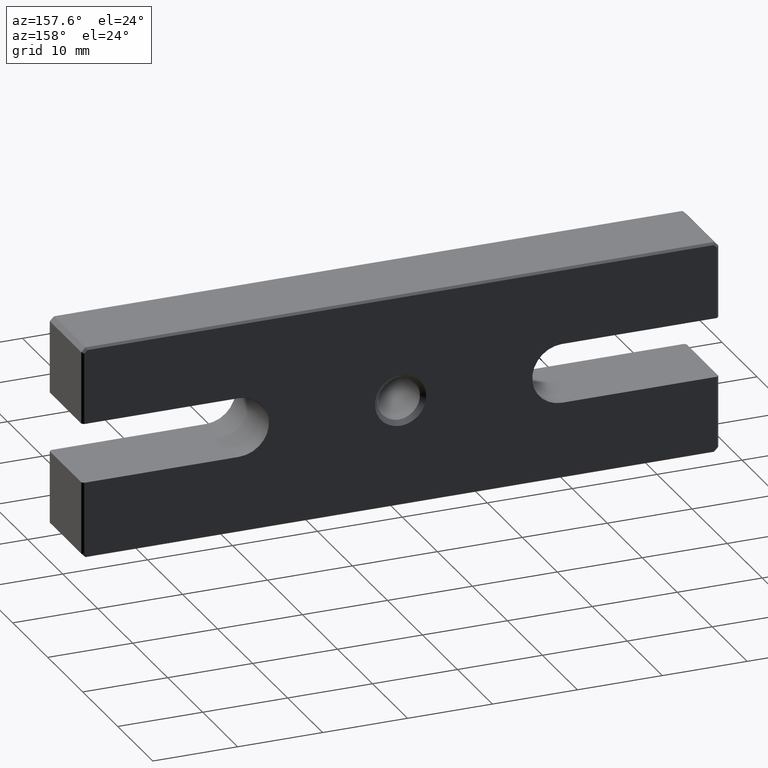
[diagram: clean part render]
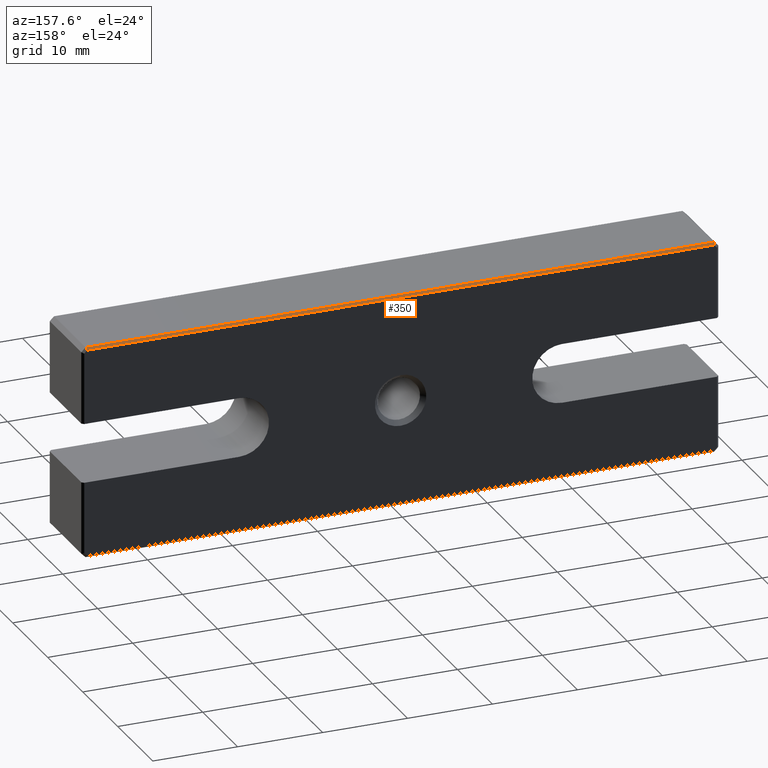
[diagram: same view with one face highlighted and labeled with its STEP entity id]
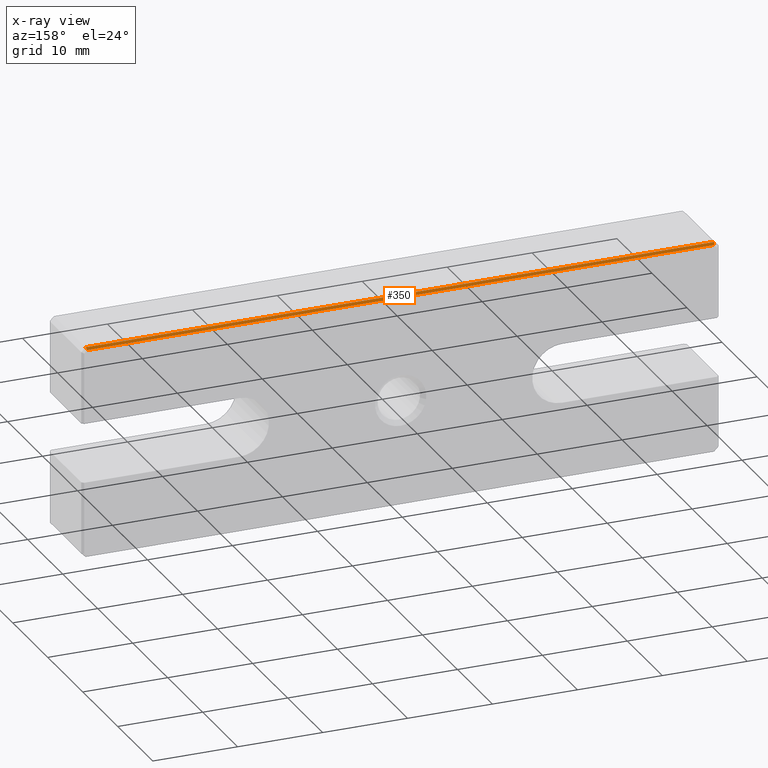
[diagram: x-ray of the same camera — body ghosted, the highlighted face saturated]
A machine part, auxiliary view. The second image highlights one B-rep face of the part: STEP entity #350.
The next image is the same camera in x-ray: the body ghosted, the highlighted face saturated — about 0% of this face is hidden behind the body in this view.
In plain terms, the highlighted planar face has unit normal (0, 0.7071, 0.7071).
Its self-contained STEP definition (entity closure, byte-faithful):
#29 = EDGE_CURVE ( 'NONE', #230, #90, #597, .T. ) ;
#38 = CARTESIAN_POINT ( 'NONE',  ( -36.99999999999999289, 9.250000000000000000, 12.49999999999999822 ) ) ;
#50 = EDGE_CURVE ( 'NONE', #922, #1126, #63, .T. ) ;
#54 = CARTESIAN_POINT ( 'NONE',  ( -36.89644660940670917, 9.500000000000000000, 12.24999999999999645 ) ) ;
#57 = VECTOR ( 'NONE', #94, 1000.000000000000000 ) ;
#63 = LINE ( 'NONE', #425, #879 ) ;
#90 = VERTEX_POINT ( 'NONE', #38 ) ;
#94 = DIRECTION ( 'NONE',  ( 0.2810846377148105146, -0.6785983445458489971, 0.6785983445458489971 ) ) ;
#170 = EDGE_CURVE ( 'NONE', #1126, #230, #711, .T. ) ;
#179 = CARTESIAN_POINT ( 'NONE',  ( 36.89644660940671628, 9.500000000000000000, 12.24999999999999822 ) ) ;
#225 = DIRECTION ( 'NONE',  ( -1.000000000000000000, 0.000000000000000000, 0.000000000000000000 ) ) ;
#230 = VERTEX_POINT ( 'NONE', #721 ) ;
#245 = DIRECTION ( 'NONE',  ( 1.000000000000000000, 0.000000000000000000, 0.000000000000000000 ) ) ;
#286 = ORIENTED_EDGE ( 'NONE', *, *, #634, .T. ) ;
#289 = CARTESIAN_POINT ( 'NONE',  ( -38.27338191940783929, 6.175784100085117245, 15.57421589991488098 ) ) ;
#350 = ADVANCED_FACE ( 'NONE', ( #781 ), #746, .T. ) ;
#425 = CARTESIAN_POINT ( 'NONE',  ( 36.99999999999999289, 9.500000000000000000, 12.24999999999999822 ) ) ;
#463 = CARTESIAN_POINT ( 'NONE',  ( 0.000000000000000000, 9.500000000000000000, 12.24999999999999822 ) ) ;
#518 = CARTESIAN_POINT ( 'NONE',  ( -36.99999999999999289, 9.250000000000000000, 12.49999999999999822 ) ) ;
#542 = VECTOR ( 'NONE', #980, 1000.000000000000000 ) ;
#555 = LINE ( 'NONE', #289, #654 ) ;
#590 = DIRECTION ( 'NONE',  ( 0.000000000000000000, 0.7071067811865475727, 0.7071067811865475727 ) ) ;
#597 = LINE ( 'NONE', #518, #542 ) ;
#627 = AXIS2_PLACEMENT_3D ( 'NONE', #463, #590, #225 ) ;
#634 = EDGE_CURVE ( 'NONE', #922, #90, #555, .T. ) ;
#644 = EDGE_LOOP ( 'NONE', ( #286, #952, #1111, #828 ) ) ;
#654 = VECTOR ( 'NONE', #832, 1000.000000000000000 ) ;
#711 = LINE ( 'NONE', #834, #57 ) ;
#721 = CARTESIAN_POINT ( 'NONE',  ( 36.99999999999999289, 9.250000000000000000, 12.49999999999999822 ) ) ;
#746 = PLANE ( 'NONE',  #627 ) ;
#781 = FACE_OUTER_BOUND ( 'NONE', #644, .T. ) ;
#828 = ORIENTED_EDGE ( 'NONE', *, *, #50, .F. ) ;
#832 = DIRECTION ( 'NONE',  ( -0.2810846377148385478, -0.6785983445458432239, 0.6785983445458432239 ) ) ;
#834 = CARTESIAN_POINT ( 'NONE',  ( 33.98131099339187244, 16.53775994034016605, 5.212240059659831282 ) ) ;
#879 = VECTOR ( 'NONE', #245, 1000.000000000000000 ) ;
#922 = VERTEX_POINT ( 'NONE', #54 ) ;
#952 = ORIENTED_EDGE ( 'NONE', *, *, #29, .F. ) ;
#980 = DIRECTION ( 'NONE',  ( -1.000000000000000000, 0.000000000000000000, 0.000000000000000000 ) ) ;
#1111 = ORIENTED_EDGE ( 'NONE', *, *, #170, .F. ) ;
#1126 = VERTEX_POINT ( 'NONE', #179 ) ;